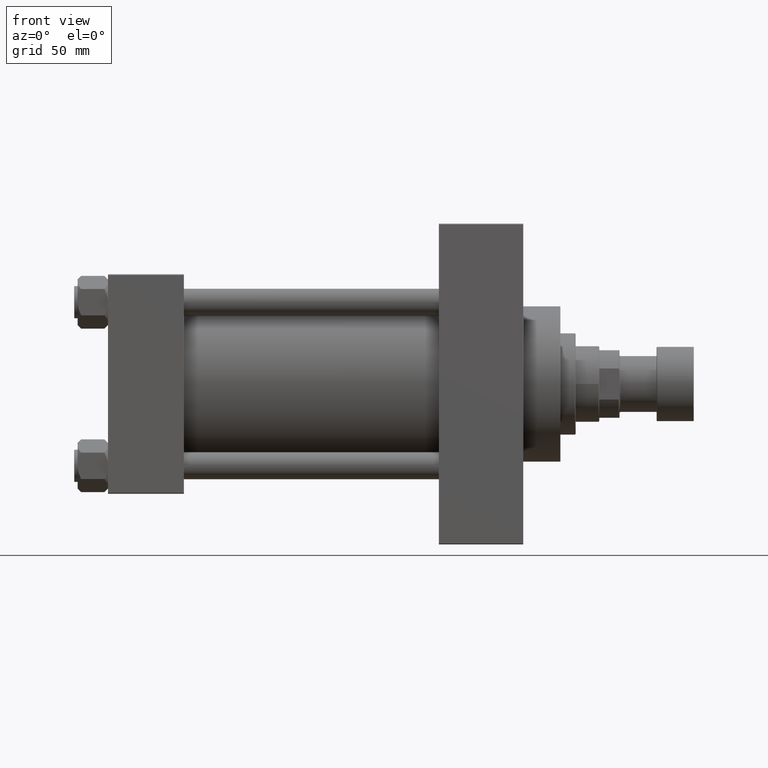
[diagram: clean part render]
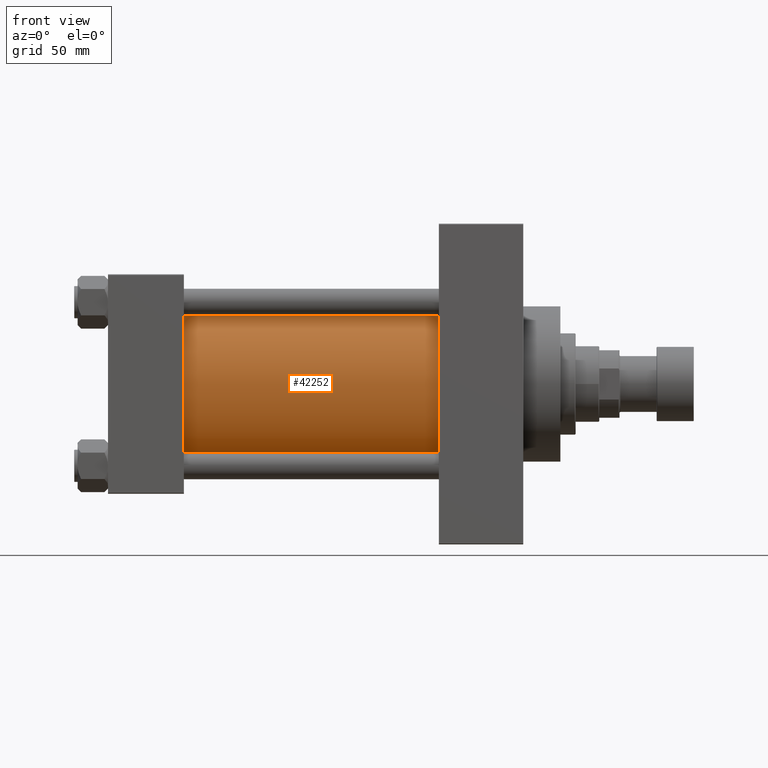
[diagram: same view with one face highlighted and labeled with its STEP entity id]
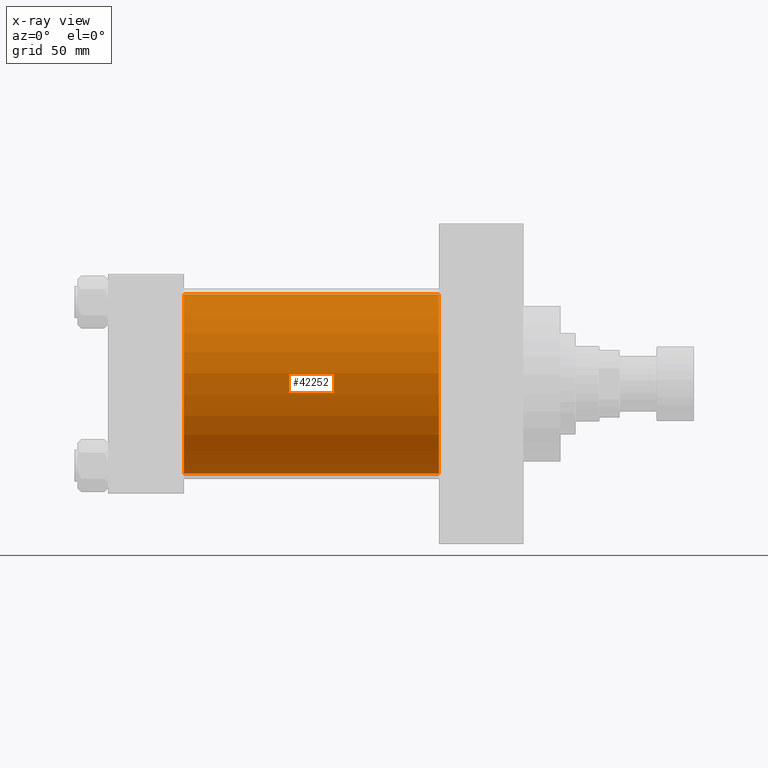
[diagram: x-ray of the same camera — body ghosted, the highlighted face saturated]
A machine part, front view. The second image highlights one B-rep face of the part: STEP entity #42252.
The next image is the same camera in x-ray: the body ghosted, the highlighted face saturated — about 2% of this face is hidden behind the body in this view.
In plain terms, the highlighted cylindrical surface (partial cylindrical patch) has radius 53 mm, axis along (-1, -0, -0).
Its self-contained STEP definition (entity closure, byte-faithful):
#171 = VERTEX_POINT ( 'NONE', #39404 ) ;
#716 = VECTOR ( 'NONE', #38386, 1000.000000000000000 ) ;
#3786 = DIRECTION ( 'NONE',  ( 0.000000000000000000, 0.000000000000000000, 1.000000000000000000 ) ) ;
#7302 = ORIENTED_EDGE ( 'NONE', *, *, #37760, .F. ) ;
#7481 = VERTEX_POINT ( 'NONE', #14121 ) ;
#7749 = EDGE_CURVE ( 'NONE', #7481, #171, #8716, .T. ) ;
#8512 = EDGE_CURVE ( 'NONE', #21668, #32440, #35205, .T. ) ;
#8716 = LINE ( 'NONE', #23576, #716 ) ;
#9911 = CARTESIAN_POINT ( 'NONE',  ( 196.0000000000000000, -2.602085213965210642E-15, 53.00000000000000711 ) ) ;
#11164 = CIRCLE ( 'NONE', #18144, 53.00000000000000711 ) ;
#14121 = CARTESIAN_POINT ( 'NONE',  ( 196.0000000000000000, 3.888542821515762466E-15, -53.00000000000000711 ) ) ;
#14972 = CARTESIAN_POINT ( 'NONE',  ( 196.0000000000000000, -2.602085213965210642E-15, 0.000000000000000000 ) ) ;
#16581 = ORIENTED_EDGE ( 'NONE', *, *, #28805, .T. ) ;
#18144 = AXIS2_PLACEMENT_3D ( 'NONE', #38951, #35070, #27561 ) ;
#18624 = CYLINDRICAL_SURFACE ( 'NONE', #40039, 53.00000000000000711 ) ;
#21668 = VERTEX_POINT ( 'NONE', #42084 ) ;
#23141 = EDGE_LOOP ( 'NONE', ( #36179, #7302, #41643, #16581 ) ) ;
#23576 = CARTESIAN_POINT ( 'NONE',  ( 196.0000000000000000, 3.888542821515762466E-15, -53.00000000000000711 ) ) ;
#24788 = CARTESIAN_POINT ( 'NONE',  ( 44.99999999999998579, -2.602085213965210642E-15, 53.00000000000000711 ) ) ;
#27561 = DIRECTION ( 'NONE',  ( 0.000000000000000000, 0.000000000000000000, -1.000000000000000000 ) ) ;
#28696 = VECTOR ( 'NONE', #39327, 1000.000000000000000 ) ;
#28805 = EDGE_CURVE ( 'NONE', #32440, #171, #47509, .T. ) ;
#29172 = DIRECTION ( 'NONE',  ( 1.000000000000000000, -0.000000000000000000, 0.000000000000000000 ) ) ;
#32440 = VERTEX_POINT ( 'NONE', #24788 ) ;
#33514 = AXIS2_PLACEMENT_3D ( 'NONE', #48113, #29172, #36214 ) ;
#35070 = DIRECTION ( 'NONE',  ( 1.000000000000000000, 0.000000000000000000, 0.000000000000000000 ) ) ;
#35205 = LINE ( 'NONE', #9911, #28696 ) ;
#36179 = ORIENTED_EDGE ( 'NONE', *, *, #7749, .F. ) ;
#36214 = DIRECTION ( 'NONE',  ( 0.000000000000000000, 0.000000000000000000, 1.000000000000000000 ) ) ;
#37091 = FACE_OUTER_BOUND ( 'NONE', #23141, .T. ) ;
#37760 = EDGE_CURVE ( 'NONE', #21668, #7481, #11164, .T. ) ;
#38386 = DIRECTION ( 'NONE',  ( -1.000000000000000000, -0.000000000000000000, -0.000000000000000000 ) ) ;
#38951 = CARTESIAN_POINT ( 'NONE',  ( 196.0000000000000000, -2.602085213965210642E-15, 0.000000000000000000 ) ) ;
#39327 = DIRECTION ( 'NONE',  ( -1.000000000000000000, -0.000000000000000000, -0.000000000000000000 ) ) ;
#39404 = CARTESIAN_POINT ( 'NONE',  ( 44.99999999999998579, 3.888542821515762466E-15, -53.00000000000000711 ) ) ;
#40039 = AXIS2_PLACEMENT_3D ( 'NONE', #14972, #44174, #3786 ) ;
#41643 = ORIENTED_EDGE ( 'NONE', *, *, #8512, .T. ) ;
#42084 = CARTESIAN_POINT ( 'NONE',  ( 196.0000000000000000, -2.602085213965210642E-15, 53.00000000000000711 ) ) ;
#42252 = ADVANCED_FACE ( 'NONE', ( #37091 ), #18624, .T. ) ;
#44174 = DIRECTION ( 'NONE',  ( -1.000000000000000000, -0.000000000000000000, -0.000000000000000000 ) ) ;
#47509 = CIRCLE ( 'NONE', #33514, 53.00000000000000711 ) ;
#48113 = CARTESIAN_POINT ( 'NONE',  ( 44.99999999999998579, -2.602085213965210642E-15, 0.000000000000000000 ) ) ;